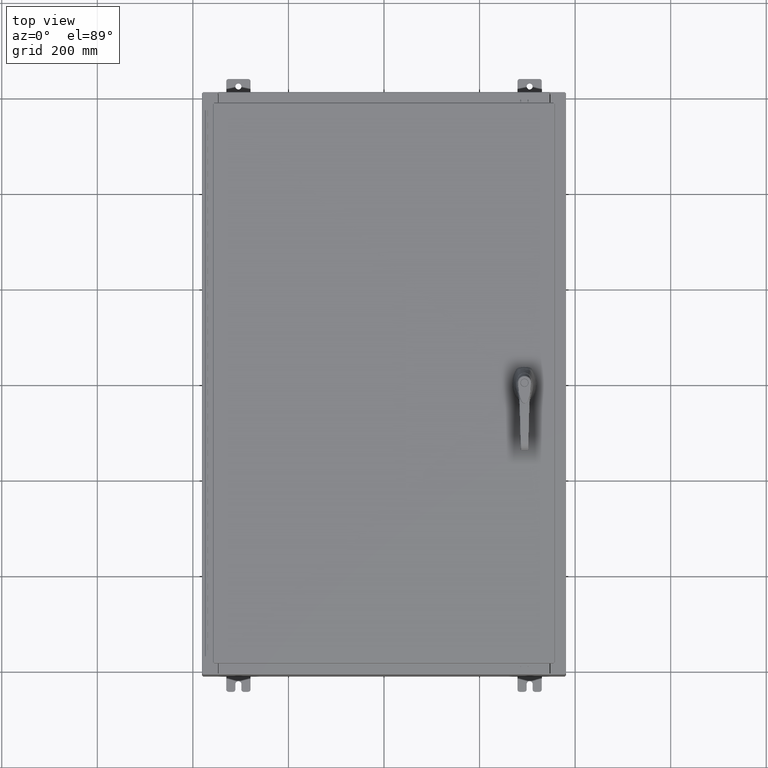
[diagram: clean part render]
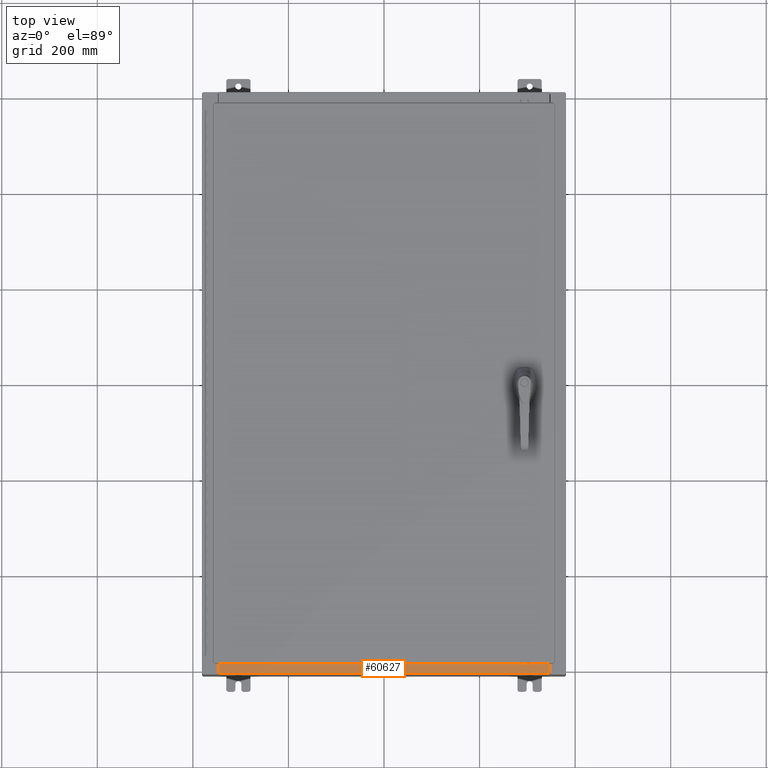
[diagram: same view with one face highlighted and labeled with its STEP entity id]
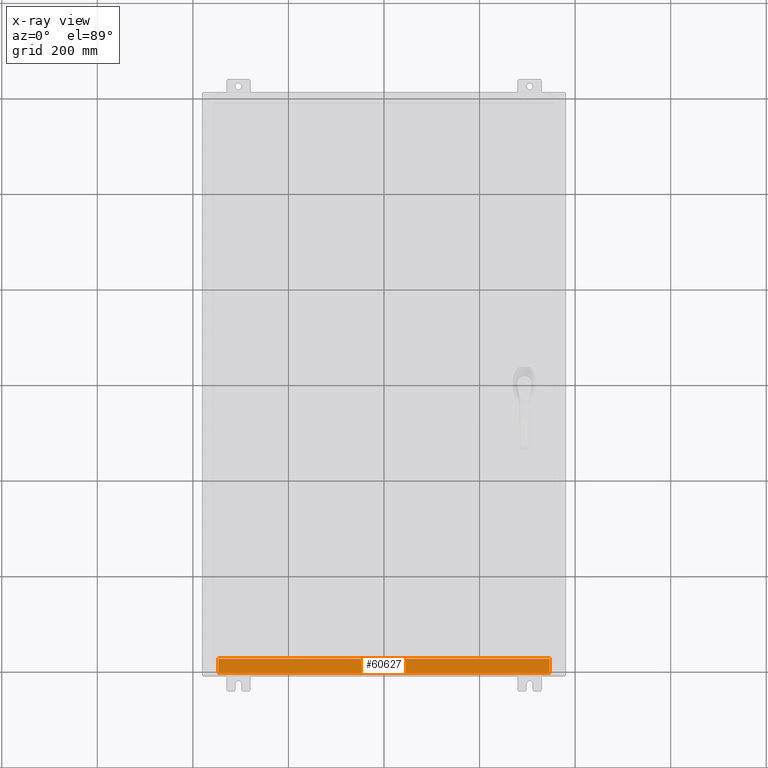
[diagram: x-ray of the same camera — body ghosted, the highlighted face saturated]
A machine part, top view. The second image highlights one B-rep face of the part: STEP entity #60627.
The next image is the same camera in x-ray: the body ghosted, the highlighted face saturated — about 0% of this face is hidden behind the body in this view.
In plain terms, the highlighted planar face has unit normal (-0, -0, 1).
Its self-contained STEP definition (entity closure, byte-faithful):
#3699 = CARTESIAN_POINT ( 'NONE',  ( 3.513669507588167300E-018, -0.08770000000000081900, 5.000000000000000000 ) ) ;
#6473 = ORIENTED_EDGE ( 'NONE', *, *, #42341, .F. ) ;
#8842 = EDGE_CURVE ( 'NONE', #106875, #123440, #80896, .T. ) ;
#13161 = CARTESIAN_POINT ( 'NONE',  ( -13.63720000000000400, -0.07469999999999973900, 5.000000000000000000 ) ) ;
#14096 = CARTESIAN_POINT ( 'NONE',  ( -13.63720000000000400, -1.287299999999999200, 5.000000000000004400 ) ) ;
#14291 = DIRECTION ( 'NONE',  ( -0.0000000000000000000, -1.000000000000000000, 3.566381192773190000E-015 ) ) ;
#17030 = ORIENTED_EDGE ( 'NONE', *, *, #107038, .F. ) ;
#20878 = DIRECTION ( 'NONE',  ( 0.0000000000000000000, -1.000000000000000000, 3.566381192773190000E-015 ) ) ;
#30430 = DIRECTION ( 'NONE',  ( -1.000000000000000000, -4.006464660875052000E-017, 1.428858021605520200E-031 ) ) ;
#33865 = DIRECTION ( 'NONE',  ( -0.0000000000000000000, 1.000000000000000000, -3.566381192773190000E-015 ) ) ;
#38194 = VERTEX_POINT ( 'NONE', #14096 ) ;
#42341 = EDGE_CURVE ( 'NONE', #112951, #38194, #53224, .T. ) ;
#44931 = ORIENTED_EDGE ( 'NONE', *, *, #117091, .F. ) ;
#46370 = CARTESIAN_POINT ( 'NONE',  ( -13.63720000000000400, -0.08770000000000081900, 5.000000000000000000 ) ) ;
#50465 = VECTOR ( 'NONE', #30430, 39.37007874015748100 ) ;
#53224 = LINE ( 'NONE', #110674, #104679 ) ;
#55844 = CARTESIAN_POINT ( 'NONE',  ( 13.63719999999999800, -1.287299999999999900, 5.000000000000004400 ) ) ;
#56432 = VECTOR ( 'NONE', #14291, 39.37007874015748100 ) ;
#60627 = ADVANCED_FACE ( 'NONE', ( #127496 ), #71964, .T. ) ;
#71964 = PLANE ( 'NONE',  #125285 ) ;
#80896 = LINE ( 'NONE', #3699, #50465 ) ;
#81797 = CARTESIAN_POINT ( 'NONE',  ( 13.63719999999999800, -0.08770000000000047200, 5.000000000000000000 ) ) ;
#82318 = DIRECTION ( 'NONE',  ( 0.0000000000000000000, 3.566381192773190000E-015, 1.000000000000000000 ) ) ;
#86962 = LINE ( 'NONE', #127136, #56432 ) ;
#104679 = VECTOR ( 'NONE', #121075, 39.37007874015748100 ) ;
#105930 = VECTOR ( 'NONE', #33865, 39.37007874015748100 ) ;
#106875 = VERTEX_POINT ( 'NONE', #81797 ) ;
#107038 = EDGE_CURVE ( 'NONE', #38194, #123440, #133403, .T. ) ;
#110674 = CARTESIAN_POINT ( 'NONE',  ( 13.63719999999999800, -1.287299999999999900, 5.000000000000002700 ) ) ;
#112951 = VERTEX_POINT ( 'NONE', #55844 ) ;
#112994 = CARTESIAN_POINT ( 'NONE',  ( 0.0000000000000000000, 1.782631094477737600E-014, 5.000000000000000000 ) ) ;
#116685 = ORIENTED_EDGE ( 'NONE', *, *, #8842, .T. ) ;
#117091 = EDGE_CURVE ( 'NONE', #106875, #112951, #86962, .T. ) ;
#121075 = DIRECTION ( 'NONE',  ( -1.000000000000000000, 0.0000000000000000000, 0.0000000000000000000 ) ) ;
#123440 = VERTEX_POINT ( 'NONE', #46370 ) ;
#125285 = AXIS2_PLACEMENT_3D ( 'NONE', #112994, #82318, #20878 ) ;
#127136 = CARTESIAN_POINT ( 'NONE',  ( 13.63719999999999800, -1.300299999999999800, 5.000000000000004400 ) ) ;
#127496 = FACE_OUTER_BOUND ( 'NONE', #133145, .T. ) ;
#133145 = EDGE_LOOP ( 'NONE', ( #17030, #6473, #44931, #116685 ) ) ;
#133403 = LINE ( 'NONE', #13161, #105930 ) ;